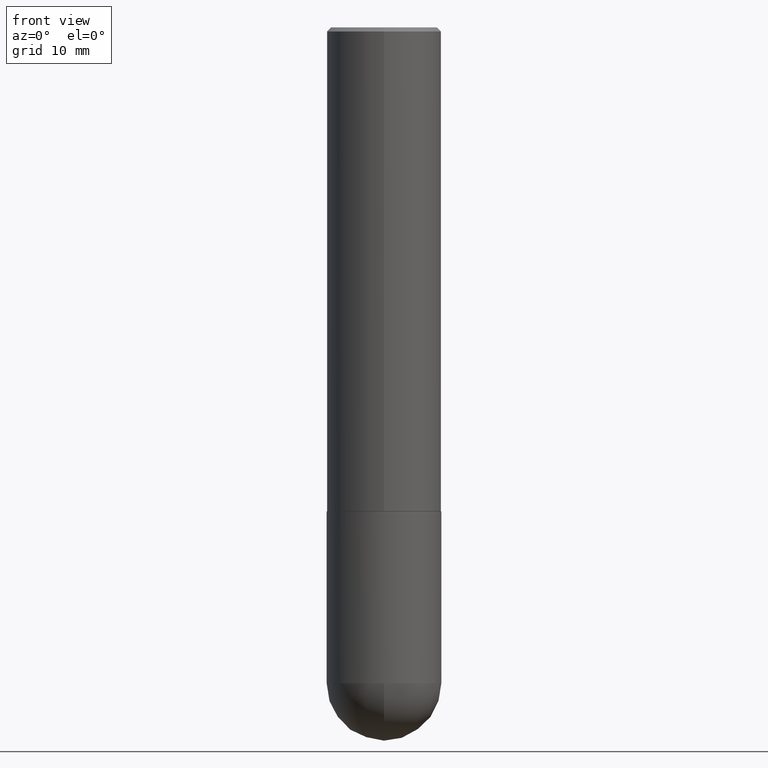
[diagram: clean part render]
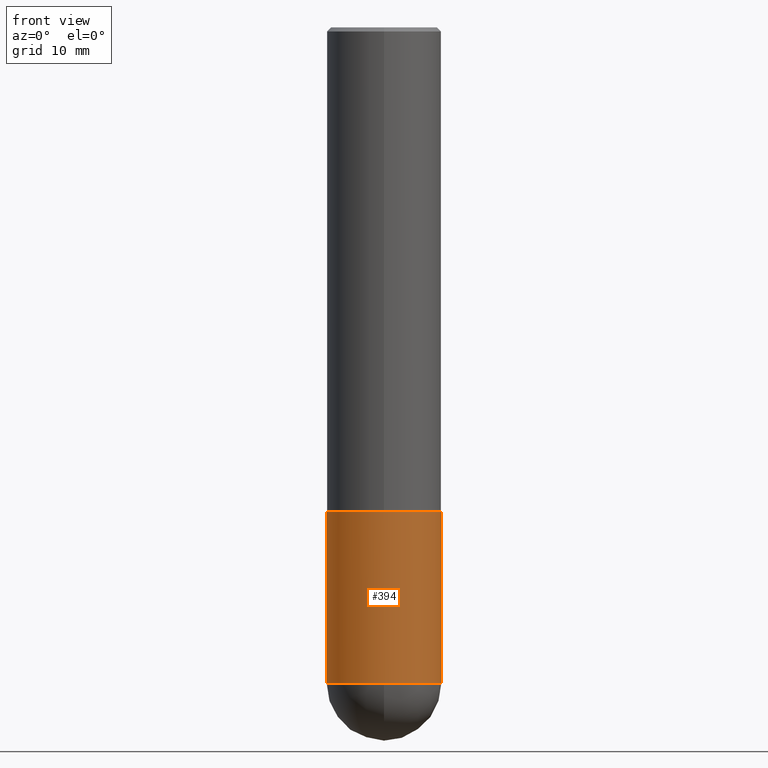
[diagram: same view with one face highlighted and labeled with its STEP entity id]
A machine part, front view. The second image highlights one B-rep face of the part: STEP entity #394.
In plain terms, the highlighted cylindrical surface (partial cylindrical patch) has radius 7.1438 mm, axis along (-0, 0, 1).
Its self-contained STEP definition (entity closure, byte-faithful):
#11 = CARTESIAN_POINT ( 'NONE',  ( -1.998401444325206042E-15, -0.2812500000000116573, -3.218749999999998668 ) ) ;
#13 = DIRECTION ( 'NONE',  ( -2.445468806185136597E-29, 3.491481338843145583E-15, 1.000000000000000000 ) ) ;
#37 = AXIS2_PLACEMENT_3D ( 'NONE', #236, #199, #79 ) ;
#40 = DIRECTION ( 'NONE',  ( 1.000000000000000000, -6.982962677686269866E-15, 0.000000000000000000 ) ) ;
#46 = DIRECTION ( 'NONE',  ( -2.445468806185136597E-29, 3.491481338843145583E-15, 1.000000000000000000 ) ) ;
#47 = CARTESIAN_POINT ( 'NONE',  ( 0.2812500000000000555, -1.963958253099262907E-15, 1.371424718192607012E-29 ) ) ;
#49 = DIRECTION ( 'NONE',  ( -2.445468806185136597E-29, 3.491481338843145583E-15, 1.000000000000000000 ) ) ;
#53 = VECTOR ( 'NONE', #365, 39.37007874015748143 ) ;
#58 = EDGE_CURVE ( 'NONE', #374, #209, #139, .T. ) ;
#60 = AXIS2_PLACEMENT_3D ( 'NONE', #277, #49, #166 ) ;
#75 = EDGE_CURVE ( 'NONE', #146, #138, #131, .T. ) ;
#79 = DIRECTION ( 'NONE',  ( 1.000000000000000000, -6.982962677686268288E-15, 0.000000000000000000 ) ) ;
#102 = CARTESIAN_POINT ( 'NONE',  ( 5.807988414689698296E-29, -8.292268179752468540E-15, -2.374999999999999556 ) ) ;
#103 = DIRECTION ( 'NONE',  ( -2.445468806185136877E-29, 3.491481338843145188E-15, 1.000000000000000000 ) ) ;
#111 = FACE_OUTER_BOUND ( 'NONE', #176, .T. ) ;
#116 = ORIENTED_EDGE ( 'NONE', *, *, #75, .T. ) ;
#118 = ORIENTED_EDGE ( 'NONE', *, *, #193, .F. ) ;
#131 = LINE ( 'NONE', #47, #179 ) ;
#138 = VERTEX_POINT ( 'NONE', #389 ) ;
#139 = CIRCLE ( 'NONE', #270, 0.2812500000000000555 ) ;
#145 = CYLINDRICAL_SURFACE ( 'NONE', #60, 0.2812500000000000555 ) ;
#146 = VERTEX_POINT ( 'NONE', #157 ) ;
#157 = CARTESIAN_POINT ( 'NONE',  ( 0.2812500000000000555, -1.172919512267618602E-14, -3.218749999999999556 ) ) ;
#166 = DIRECTION ( 'NONE',  ( 1.000000000000000000, -6.982962677686266711E-15, 4.876176775795935232E-29 ) ) ;
#174 = CARTESIAN_POINT ( 'NONE',  ( -0.2812500000000000555, -7.766835425251639371E-15, -3.218749999999999556 ) ) ;
#176 = EDGE_LOOP ( 'NONE', ( #312, #339, #282, #116, #118 ) ) ;
#179 = VECTOR ( 'NONE', #103, 39.37007874015748143 ) ;
#180 = CIRCLE ( 'NONE', #37, 0.2812500000000000555 ) ;
#193 = EDGE_CURVE ( 'NONE', #382, #138, #235, .T. ) ;
#199 = DIRECTION ( 'NONE',  ( -2.445468806185136597E-29, 3.491481338843145583E-15, 1.000000000000000000 ) ) ;
#209 = VERTEX_POINT ( 'NONE', #11 ) ;
#227 = EDGE_CURVE ( 'NONE', #209, #146, #180, .T. ) ;
#235 = CIRCLE ( 'NONE', #378, 0.2812500000000000000 ) ;
#236 = CARTESIAN_POINT ( 'NONE',  ( 7.871352719908407300E-29, -1.123820555940137375E-14, -3.218749999999999556 ) ) ;
#245 = CARTESIAN_POINT ( 'NONE',  ( -0.2812500000000000555, 1.998401444325282167E-15, -1.383450494134192269E-29 ) ) ;
#267 = DIRECTION ( 'NONE',  ( 1.000000000000000000, -6.982962677686268288E-15, 0.000000000000000000 ) ) ;
#270 = AXIS2_PLACEMENT_3D ( 'NONE', #296, #13, #267 ) ;
#277 = CARTESIAN_POINT ( 'NONE',  ( 0.000000000000000000, 0.000000000000000000, 0.000000000000000000 ) ) ;
#282 = ORIENTED_EDGE ( 'NONE', *, *, #227, .T. ) ;
#296 = CARTESIAN_POINT ( 'NONE',  ( 7.871352719908407300E-29, -1.123820555940137375E-14, -3.218749999999999556 ) ) ;
#312 = ORIENTED_EDGE ( 'NONE', *, *, #324, .F. ) ;
#324 = EDGE_CURVE ( 'NONE', #374, #382, #398, .T. ) ;
#339 = ORIENTED_EDGE ( 'NONE', *, *, #58, .T. ) ;
#363 = CARTESIAN_POINT ( 'NONE',  ( -0.2812500000000000000, -7.766835425251637793E-15, -2.374999999999999556 ) ) ;
#365 = DIRECTION ( 'NONE',  ( -2.445468806185136877E-29, 3.491481338843145188E-15, 1.000000000000000000 ) ) ;
#374 = VERTEX_POINT ( 'NONE', #174 ) ;
#378 = AXIS2_PLACEMENT_3D ( 'NONE', #102, #46, #40 ) ;
#382 = VERTEX_POINT ( 'NONE', #363 ) ;
#389 = CARTESIAN_POINT ( 'NONE',  ( 0.2812500000000000000, -1.025622643285173184E-14, -2.374999999999999556 ) ) ;
#394 = ADVANCED_FACE ( 'NONE', ( #111 ), #145, .T. ) ;
#398 = LINE ( 'NONE', #245, #53 ) ;